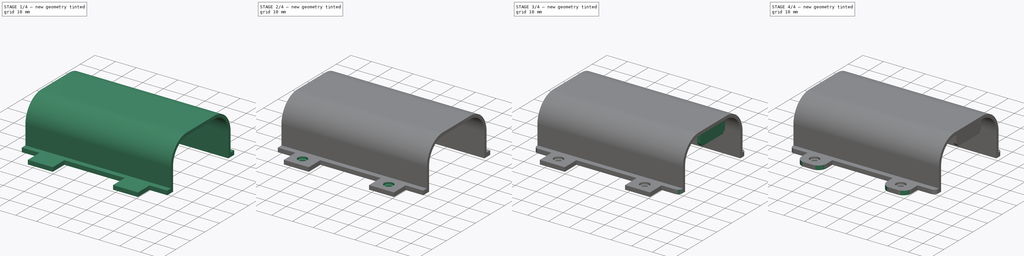
[diagram: build sequence overview — one tinted view per stage of 4, left to right]
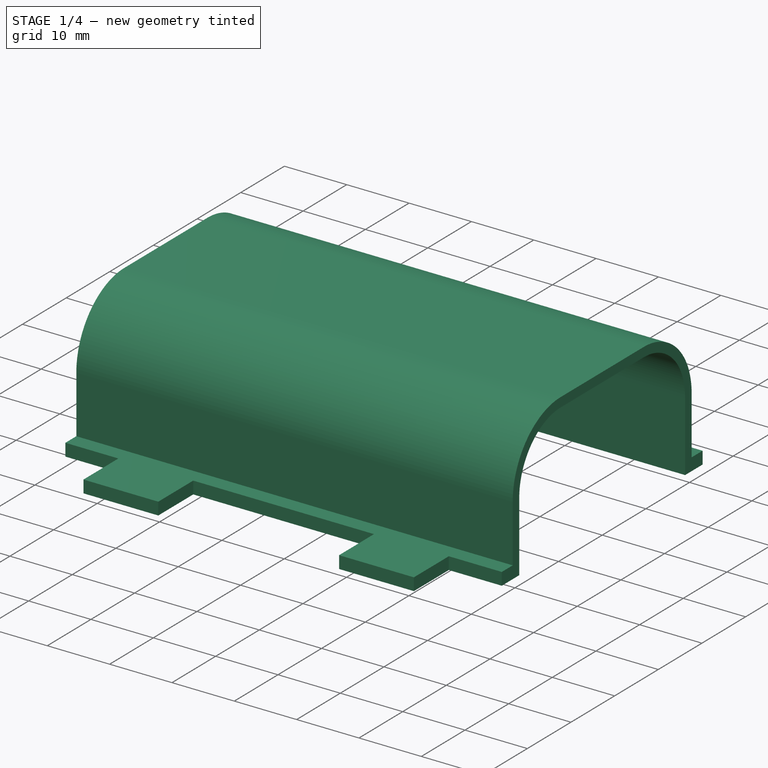
[diagram: stage 1 of 4 — iso view after this stage's code; geometry added in this stage tinted green]
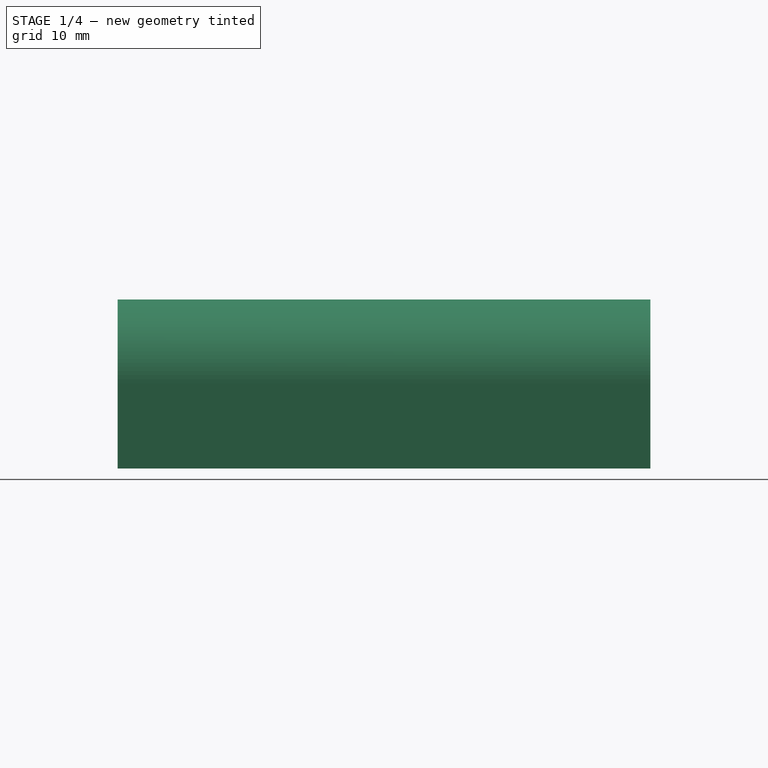
[diagram: stage 1 of 4 — front view after this stage's code; geometry added in this stage tinted green]
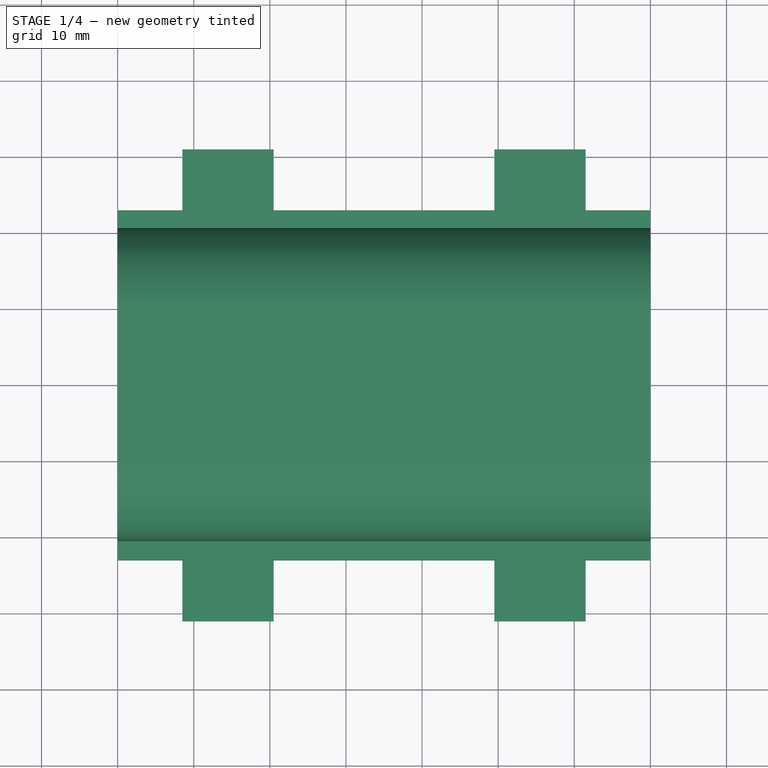
[diagram: stage 1 of 4 — top view after this stage's code; geometry added in this stage tinted green]
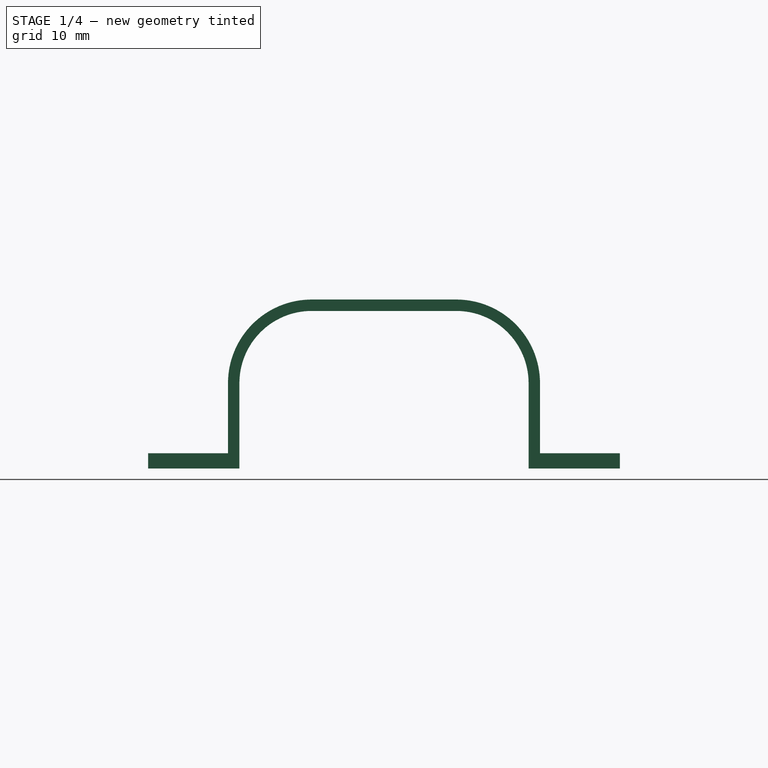
[diagram: stage 1 of 4 — right view after this stage's code; geometry added in this stage tinted green]
FCSTD DOCUMENT  (FreeCAD 0.20R29603 (Git))
Label: BatteryHolder
License: All rights reserved
LicenseURL: http://en.wikipedia.org/wiki/All_rights_reserved
objects: Sketcher::SketchObject×5, PartDesign::Pocket×3, PartDesign::Fillet×3, PartDesign::Pad×2, PartDesign::LinearPattern×1, PartDesign::Body×1
note: 23 computed .brp shape members not serialized (recipe doc carries the construction recipe); baked Part::Feature solids carry a one-line shape summary decoded from their .brp

FEATURE [Sketcher::SketchObject] Sketch
  FullyConstrained = true
  MapMode = 5
  Placement = pos=(0,0,0) rot=(0.57735,0.57735,0.57735;2.0944rad)
  Support = -> [YZ_Plane]
  sketch-geometry (16):
    g0: ArcOfCircle CenterX=9.5 CenterY=11.2 CenterZ=0 NormalX=0 NormalY=0 NormalZ=1 AngleXU=0 Radius=9.5 StartAngle=2.1e-15 EndAngle=1.5708
    g1: ArcOfCircle CenterX=-9.5 CenterY=11.2 CenterZ=0 NormalX=0 NormalY=0 NormalZ=1 AngleXU=0 Radius=9.5 StartAngle=1.5708 EndAngle=3.14159
    g2: LineSegment StartX=-9.5 StartY=20.7 StartZ=0 EndX=9.5 EndY=20.7 EndZ=0
    g3: LineSegment StartX=-9.5 StartY=22.2 StartZ=0 EndX=9.5 EndY=22.2 EndZ=0
    g4: LineSegment StartX=-19 StartY=11.2 StartZ=0 EndX=-19 EndY=0 EndZ=0
    g5: LineSegment StartX=-31 StartY=0 StartZ=0 EndX=-31 EndY=2 EndZ=0
    g6: LineSegment StartX=-31 StartY=2 StartZ=0 EndX=-20.5 EndY=2 EndZ=0
    g7: LineSegment StartX=-20.5 StartY=2 StartZ=0 EndX=-20.5 EndY=11.2 EndZ=0
    g8: LineSegment StartX=19 StartY=11.2 StartZ=0 EndX=19 EndY=0 EndZ=0
    g9: LineSegment StartX=-19 StartY=0 StartZ=0 EndX=-31 EndY=0 EndZ=0
    g10: LineSegment StartX=19 StartY=0 StartZ=0 EndX=31 EndY=0 EndZ=0
    g11: LineSegment StartX=31 StartY=0 StartZ=0 EndX=31 EndY=2 EndZ=0
    g12: LineSegment StartX=31 StartY=2 StartZ=0 EndX=20.5 EndY=2 EndZ=0
    g13: LineSegment StartX=20.5 StartY=2 StartZ=0 EndX=20.5 EndY=11.2 EndZ=0
    g14: ArcOfCircle CenterX=-9.5 CenterY=11.2 CenterZ=0 NormalX=0 NormalY=0 NormalZ=1 AngleXU=0 Radius=11 StartAngle=1.5708 EndAngle=3.14159
    g15: ArcOfCircle CenterX=9.5 CenterY=11.2 CenterZ=0 NormalX=0 NormalY=0 NormalZ=1 AngleXU=0 Radius=11 StartAngle=0 EndAngle=1.5708
  constraints (38):
    c: Equal(g0,g1)
    c: Diameter(g0) = 19
    c: Horizontal(g3)
    c: DistanceY(g-1,g1) = 11.2
    c: PointOnObject(g4,g-1)
    c: PointOnObject(g5,g-1)
    c: Vertical(g5)
    c: Coincident(g6,g5)
    c: Horizontal(g6)
    c: Coincident(g7,g6)
    c: Coincident(g9,g4)
    c: Coincident(g9,g5)
    c: Coincident(g10,g8)
    c: PointOnObject(g10,g-1)
    c: Vertical(g11)
    c: Tangent(g1,g2) = 1.5708
    c: Tangent(g0,g2) = 1.5708
    c: Symmetric(g1,g0,g-2)
    c: DistanceX(g1,g0) = 19
    c: Diameter(g15) = 22
    c: Coincident(g14,g1)
    c: Coincident(g15,g0)
    c: Tangent(g3,g14) = 1.5708
    c: Tangent(g3,g15) = 1.5708
    c: Tangent(g15,g13) = -1.5708
    c: Tangent(g7,g14) = 1.5708
    c: Tangent(g1,g4) = -1.5708
    c: Tangent(g0,g8) = 1.5708
    c: Symmetric(g4,g8,g-2)
    c: Vertical(g4)
    c: Symmetric(g6,g12,g-2)
    c: Vertical(g7)
    c: Coincident(g13,g12)
    c: Coincident(g12,g11)
    c: Coincident(g10,g11)
    c: Symmetric(g5,g11,g-2)
    c: DistanceX(g8,g10) = 12
    c: DistanceY(g10,g11) = 2
FEATURE [PartDesign::Pad] Pad
  Direction = (1,-2e-16,3e-16)
  Length = 70
  Length2 = 10
  Placement = pos=(0,0,0) rot=(0.57735,0.57735,0.57735;2.0944rad)
  Profile = -> Sketch
  ReferenceAxis = -> Sketch [N_Axis]
  Type = 0
FEATURE [Sketcher::SketchObject] Sketch001
  ExternalGeometry = -> [Pad]
  FullyConstrained = true
  MapMode = 5
  Placement = pos=(-6e-16,9e-16,2) rot=(0,0,-1;1.5708rad)
  Support = -> [Pad]
  sketch-geometry (24):
    g0: LineSegment StartX=23 StartY=73 StartZ=0 EndX=23 EndY=61.5 EndZ=0
    g1: LineSegment StartX=35 StartY=61.5 StartZ=0 EndX=35 EndY=49.5 EndZ=0
    g2: LineSegment StartX=35 StartY=49.5 StartZ=0 EndX=23 EndY=49.5 EndZ=0
    g3: LineSegment StartX=23 StartY=49.5 StartZ=0 EndX=23 EndY=20.5 EndZ=0
    g4: LineSegment StartX=23 StartY=20.5 StartZ=0 EndX=35 EndY=20.5 EndZ=0
    g5: LineSegment StartX=35 StartY=20.5 StartZ=0 EndX=35 EndY=8.5 EndZ=0
    g6: LineSegment StartX=35 StartY=8.5 StartZ=0 EndX=23 EndY=8.5 EndZ=0
    g7: LineSegment StartX=23 StartY=8.5 StartZ=0 EndX=23 EndY=-3 EndZ=0
    g8: LineSegment StartX=23 StartY=-3 StartZ=0 EndX=46 EndY=-3 EndZ=0
    g9: LineSegment StartX=46 StartY=-3 StartZ=0 EndX=46 EndY=73 EndZ=0
    g10: LineSegment StartX=46 StartY=73 StartZ=0 EndX=23 EndY=73 EndZ=0
    g11: LineSegment StartX=23 StartY=61.5 StartZ=0 EndX=35 EndY=61.5 EndZ=0
    g12: LineSegment StartX=-46 StartY=73 StartZ=0 EndX=-23 EndY=73 EndZ=0
    g13: LineSegment StartX=-23 StartY=73 StartZ=0 EndX=-23 EndY=61.5 EndZ=0
    g14: LineSegment StartX=-35 StartY=61.5 StartZ=0 EndX=-35 EndY=49.5 EndZ=0
    g15: LineSegment StartX=-23 StartY=61.5 StartZ=0 EndX=-35 EndY=61.5 EndZ=0
    g16: LineSegment StartX=-23 StartY=49.5 StartZ=0 EndX=-23 EndY=20.5 EndZ=0
    g17: LineSegment StartX=-23 StartY=20.5 StartZ=0 EndX=-35 EndY=20.5 EndZ=0
    g18: LineSegment StartX=-35 StartY=20.5 StartZ=0 EndX=-35 EndY=8.5 EndZ=0
    g19: LineSegment StartX=-35 StartY=8.5 StartZ=0 EndX=-23 EndY=8.5 EndZ=0
    g20: LineSegment StartX=-23 StartY=8.5 StartZ=0 EndX=-23 EndY=-3 EndZ=0
    g21: LineSegment StartX=-23 StartY=-3 StartZ=0 EndX=-46 EndY=-3 EndZ=0
    g22: LineSegment StartX=-46 StartY=-3 StartZ=0 EndX=-46 EndY=73 EndZ=0
    g23: LineSegment StartX=-35 StartY=49.5 StartZ=0 EndX=-23 EndY=49.5 EndZ=0
  constraints (72):
    c: Vertical(g0)
    c: Vertical(g1)
    c: Coincident(g1,g2)
    c: Horizontal(g2)
    c: Coincident(g2,g3)
    c: Vertical(g3)
    c: Coincident(g3,g4)
    c: Horizontal(g4)
    c: Coincident(g4,g5)
    c: Vertical(g5)
    c: Coincident(g5,g6)
    c: Horizontal(g6)
    c: Coincident(g6,g7)
    c: Vertical(g7)
    c: Coincident(g7,g8)
    c: Horizontal(g8)
    c: Coincident(g8,g9)
    c: Vertical(g9)
    c: Coincident(g9,g10)
    c: Coincident(g10,g0)
    c: Horizontal(g10)
    c: DistanceX(g-1,g7) = 23
    c: Vertical(g6,g3)
    c: Vertical(g3,g0)
    c: DistanceY(g5,g4) = 12
    c: Equal(g5,g1)
    c: Vertical(g1,g5)
    c: DistanceX(g2,g1) = 12
    c: DistanceX(g0,g9) = 23
    c: DistanceY(g8,g9) = 76
    c: Equal(g7,g0)
    c: DistanceY(g3,g3) = 29
    c: DistanceY(g7,g-1) = 3
    c: Coincident(g11,g0)
    c: Coincident(g11,g1)
    c: Horizontal(g11)
    c: Vertical(g13)
    c: Vertical(g14)
    c: Vertical(g16)
    c: Coincident(g16,g17)
    c: Horizontal(g17)
    c: Coincident(g17,g18)
    c: Vertical(g18)
    c: Coincident(g18,g19)
    c: Horizontal(g19)
    c: Coincident(g19,g20)
    c: Vertical(g20)
    c: Coincident(g20,g21)
    c: Horizontal(g21)
    c: Coincident(g21,g22)
    c: Vertical(g22)
    c: Coincident(g22,g12)
    c: Coincident(g12,g13)
    c: Horizontal(g12)
    c: Equal(g18,g14)
    c: Equal(g20,g13)
    c: Coincident(g15,g13)
    c: Coincident(g15,g14)
    c: Horizontal(g15)
    c: Coincident(g23,g14)
    c: Coincident(g23,g16)
    c: Horizontal(g23)
    c: Equal(g10,g12)
    c: Equal(g22,g9)
    c: Equal(g21,g8)
    c: Equal(g20,g7)
    c: Equal(g19,g6)
    c: Equal(g16,g3)
    c: Equal(g23,g2)
    c: Vertical(g13,g16)
    c: DistanceX(g20,g-1) = 23
    c: Horizontal(g19,g6)
FEATURE [PartDesign::Pocket] Pocket
  BaseFeature = -> Pad
  Direction = (4e-16,-6e-16,-1)
  Length = 5
  Length2 = 5
  Placement = pos=(0,0,0) rot=(0.57735,0.57735,0.57735;2.0944rad)
  Profile = -> Sketch001
  ReferenceAxis = -> Sketch001 [N_Axis]
  Type = 1
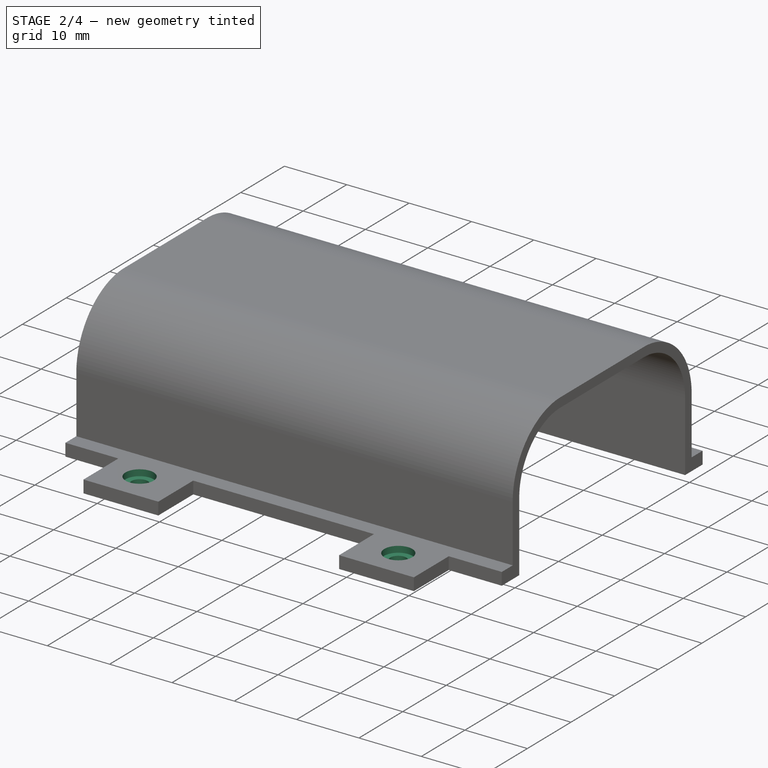
[diagram: stage 2 of 4 — iso view after this stage's code; geometry added in this stage tinted green]
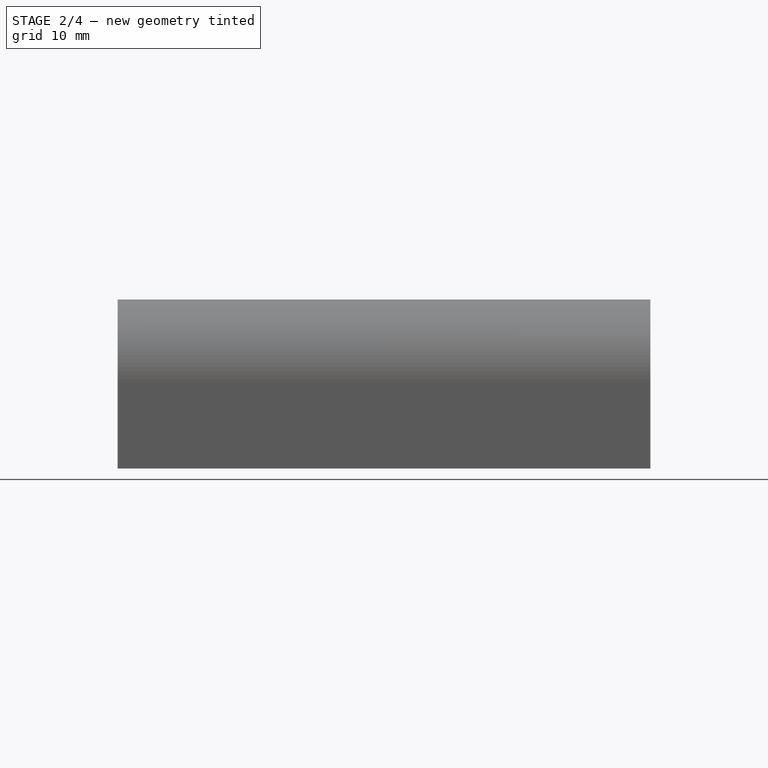
[diagram: stage 2 of 4 — front view after this stage's code; geometry added in this stage tinted green]
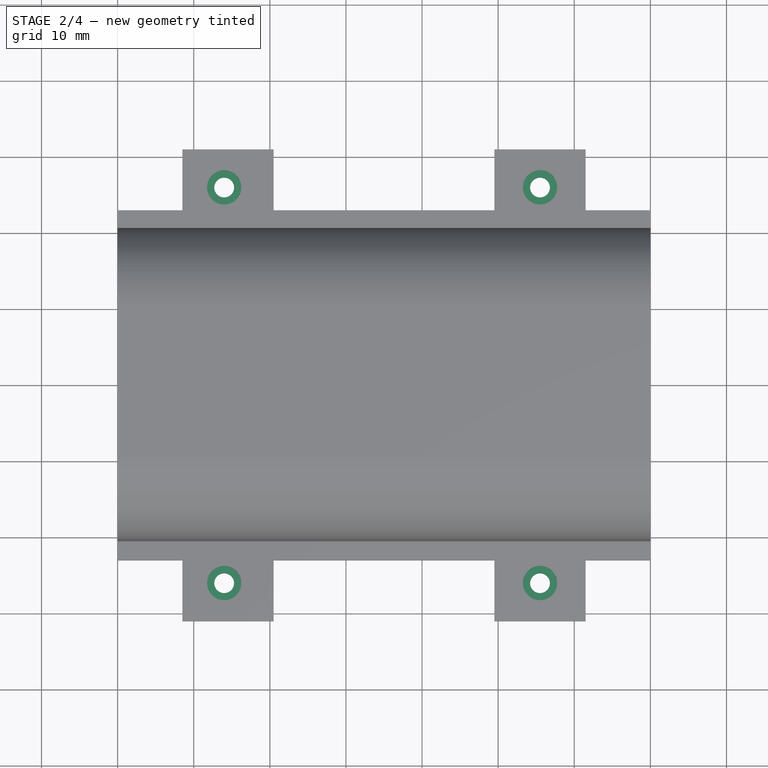
[diagram: stage 2 of 4 — top view after this stage's code; geometry added in this stage tinted green]
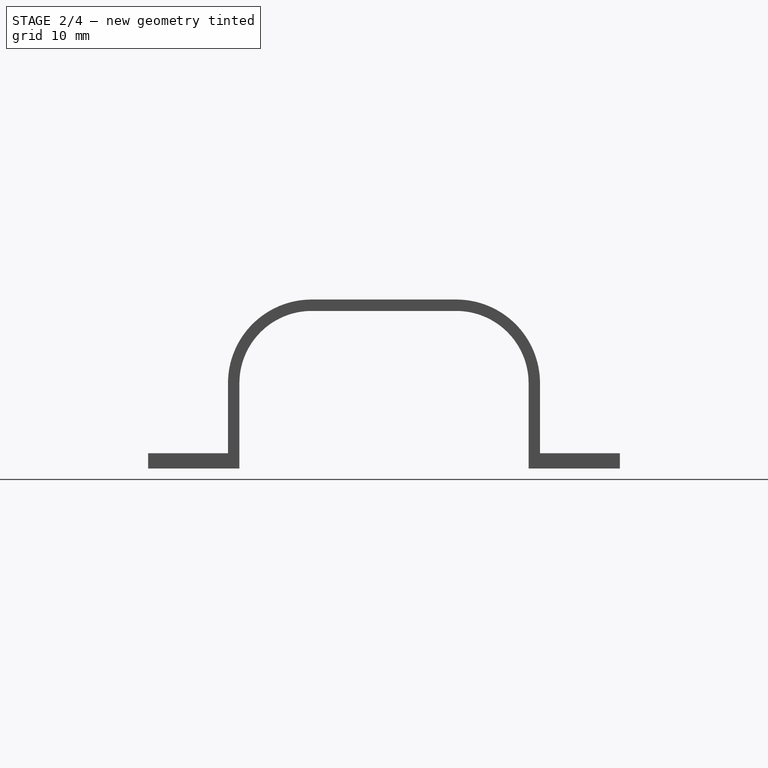
[diagram: stage 2 of 4 — right view after this stage's code; geometry added in this stage tinted green]
FEATURE [Sketcher::SketchObject] Sketch002
  FullyConstrained = true
  MapMode = 5
  Placement = pos=(-6e-16,9e-16,2) rot=(0,0,-1;1.5708rad)
  Support = -> [Pocket]
  sketch-geometry (4):
    g0: Circle CenterX=26 CenterY=14 CenterZ=0 NormalX=0 NormalY=0 NormalZ=1 AngleXU=0 Radius=1.3
    g1: Circle CenterX=-26 CenterY=14 CenterZ=0 NormalX=0 NormalY=0 NormalZ=1 AngleXU=0 Radius=1.3
    g2: Circle CenterX=26 CenterY=55.5 CenterZ=0 NormalX=0 NormalY=0 NormalZ=1 AngleXU=0 Radius=1.3
    g3: Circle CenterX=-26 CenterY=55.5 CenterZ=0 NormalX=0 NormalY=0 NormalZ=1 AngleXU=0 Radius=1.3
  constraints (10):
    c: DistanceX(g-1,g0) = 26
    c: Vertical(g2,g0)
    c: Symmetric(g0,g1,g-2)
    c: Symmetric(g2,g3,g-2)
    c: DistanceY(g-1,g0) = 14
    c: DistanceY(g0,g2) = 41.5
    c: Equal(g2,g0)
    c: Equal(g0,g3)
    c: Equal(g3,g1)
    c: Diameter(g2) = 2.6
FEATURE [PartDesign::Pocket] Pocket001
  BaseFeature = -> Pocket
  Direction = (7e-16,-7e-16,-1)
  Length = 5
  Length2 = 5
  Placement = pos=(0,0,0) rot=(0.57735,0.57735,0.57735;2.0944rad)
  Profile = -> Sketch002
  ReferenceAxis = -> Sketch002 [N_Axis]
  Type = 1
FEATURE [Sketcher::SketchObject] Sketch003
  ExternalGeometry = -> [Pocket001]
  FullyConstrained = true
  MapMode = 5
  Placement = pos=(-6e-16,9e-16,2) rot=(0,0,-1;1.5708rad)
  Support = -> [Pocket001]
  sketch-geometry (4):
    g0: Circle CenterX=26 CenterY=55.5 CenterZ=0 NormalX=0 NormalY=0 NormalZ=1 AngleXU=0 Radius=2.25
    g1: Circle CenterX=26 CenterY=14 CenterZ=0 NormalX=0 NormalY=0 NormalZ=1 AngleXU=0 Radius=2.25
    g2: Circle CenterX=-26 CenterY=55.5 CenterZ=0 NormalX=0 NormalY=0 NormalZ=1 AngleXU=0 Radius=2.25
    g3: Circle CenterX=-26 CenterY=14 CenterZ=0 NormalX=0 NormalY=0 NormalZ=1 AngleXU=0 Radius=2.25
  constraints (8):
    c: Coincident(g0,g-3)
    c: Coincident(g1,g-4)
    c: Coincident(g2,g-5)
    c: Coincident(g3,g-6)
    c: Equal(g0,g1)
    c: Equal(g1,g3)
    c: Equal(g3,g2)
    c: Diameter(g0) = 4.5
FEATURE [PartDesign::Pocket] Pocket002
  BaseFeature = -> Pocket001
  Direction = (1.1e-15,-8e-16,-1)
  Length = 1
  Length2 = 5
  Placement = pos=(0,0,0) rot=(0.57735,0.57735,0.57735;2.0944rad)
  Profile = -> Sketch003
  ReferenceAxis = -> Sketch003 [N_Axis]
  Type = 0
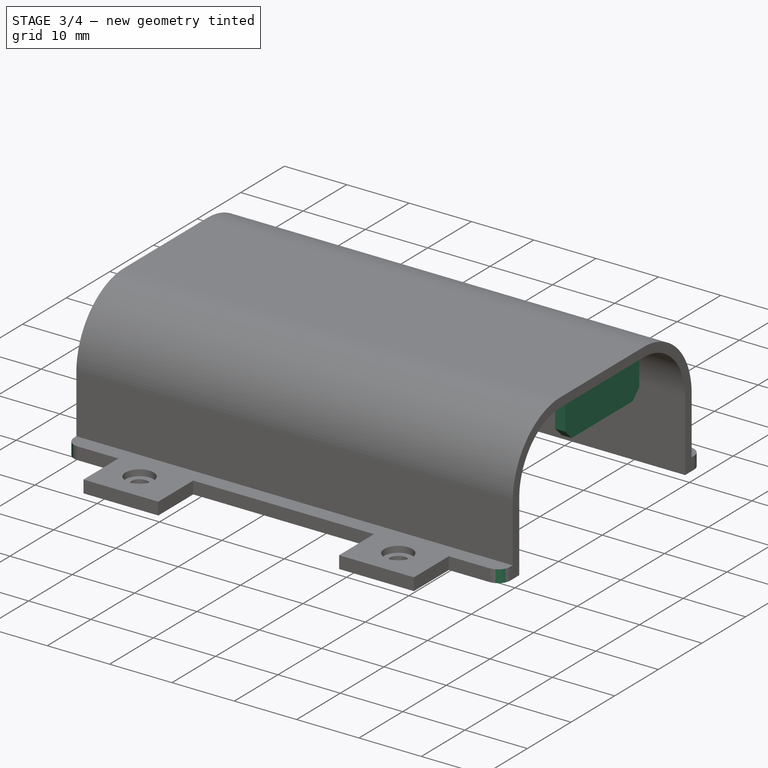
[diagram: stage 3 of 4 — iso view after this stage's code; geometry added in this stage tinted green]
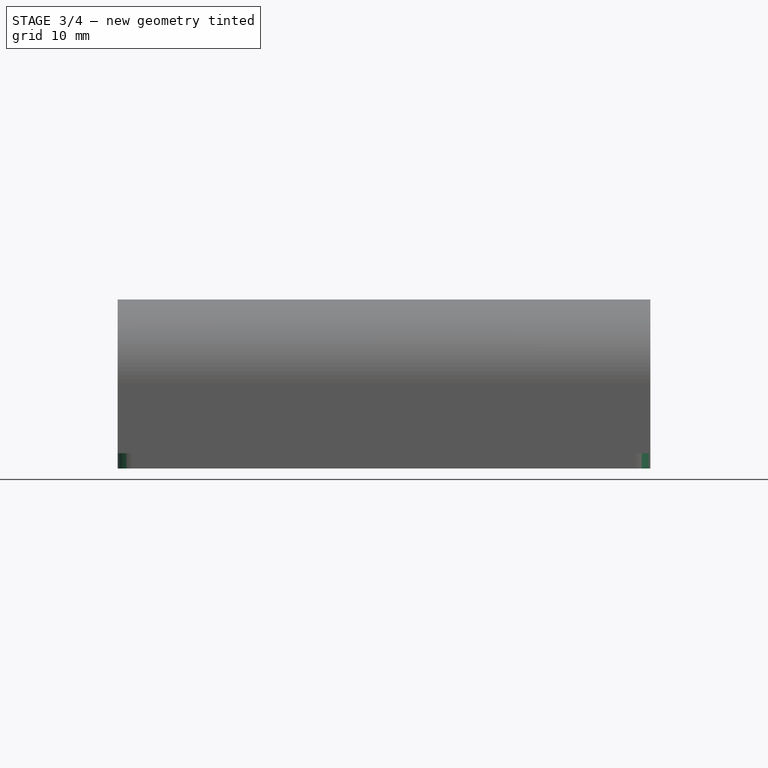
[diagram: stage 3 of 4 — front view after this stage's code; geometry added in this stage tinted green]
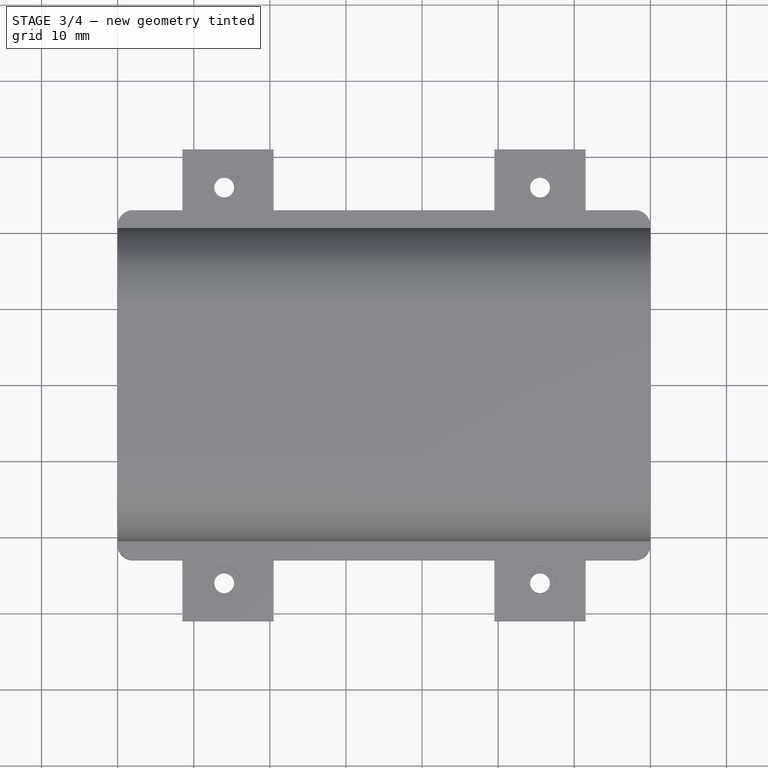
[diagram: stage 3 of 4 — top view after this stage's code; geometry added in this stage tinted green]
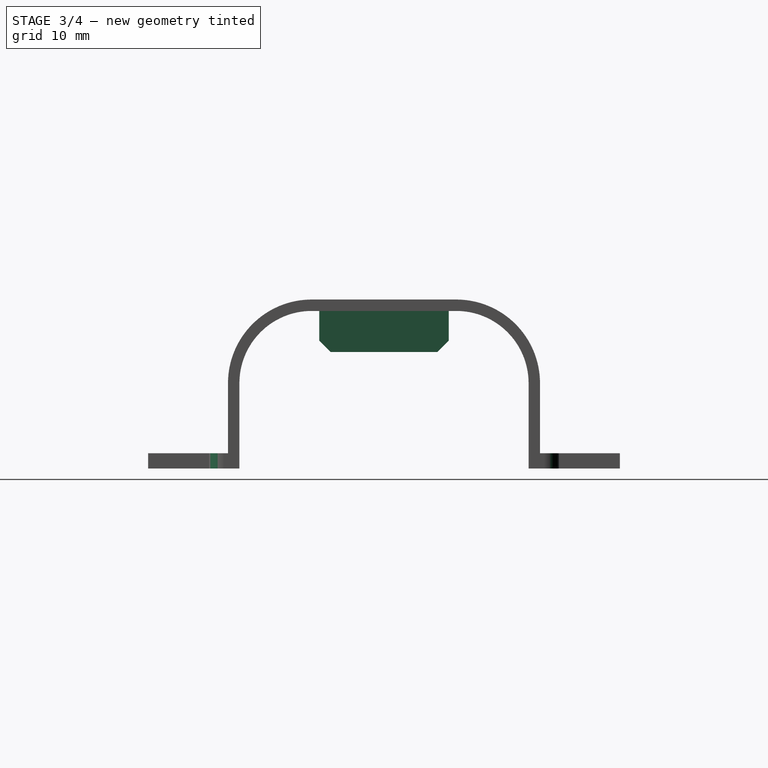
[diagram: stage 3 of 4 — right view after this stage's code; geometry added in this stage tinted green]
FEATURE [Sketcher::SketchObject] Sketch004
  ExternalGeometry = -> [Pocket002]
  FullyConstrained = true
  MapMode = 5
  Placement = pos=(0,0,0) rot=(0.57735,0.57735,0.57735;2.0944rad)
  Support = -> [YZ_Plane]
  sketch-geometry (6):
    g0: LineSegment StartX=-8.5 StartY=21.3 StartZ=0 EndX=8.5 EndY=21.3 EndZ=0
    g1: LineSegment StartX=-8.5 StartY=21.3 StartZ=0 EndX=-8.5 EndY=16.8 EndZ=0
    g2: LineSegment StartX=-8.5 StartY=16.8 StartZ=0 EndX=-7 EndY=15.3 EndZ=0
    g3: LineSegment StartX=-7 StartY=15.3 StartZ=0 EndX=7 EndY=15.3 EndZ=0
    g4: LineSegment StartX=7 StartY=15.3 StartZ=0 EndX=8.5 EndY=16.8 EndZ=0
    g5: LineSegment StartX=8.5 StartY=16.8 StartZ=0 EndX=8.5 EndY=21.3 EndZ=0
  constraints (16):
    c: Coincident(g1,g0)
    c: Vertical(g1)
    c: Coincident(g5,g0)
    c: Coincident(g4,g5)
    c: Vertical(g5)
    c: Symmetric(g0,g0,g-2)
    c: Coincident(g1,g2)
    c: Coincident(g2,g3)
    c: Coincident(g4,g3)
    c: DistanceY(g-3,g0) = 0.6
    c: DistanceX(g-3,g0) = 1
    c: Symmetric(g2,g3,g-2)
    c: DistanceY(g1,g0) = 4.5
    c: Equal(g5,g1)
    c: DistanceY(g3,g0) = 6
    c: DistanceX(g2,g3) = 14
FEATURE [PartDesign::Pad] Pad001
  BaseFeature = -> Pocket002
  Direction = (1,-2e-16,3e-16)
  Length = 1.6
  Length2 = 10
  Placement = pos=(0,0,0) rot=(0.57735,0.57735,0.57735;2.0944rad)
  Profile = -> Sketch004
  ReferenceAxis = -> Sketch004 [N_Axis]
  Type = 0
FEATURE [PartDesign::LinearPattern] LinearPattern
  BaseFeature = -> Pad001
  Direction = -> X_Axis
  Length = 68.4
  Occurrences = 2
  Originals = -> [Pad001]
  Placement = pos=(0,0,0) rot=(0.57735,0.57735,0.57735;2.0944rad)
FEATURE [PartDesign::Fillet] Fillet
  Base = -> LinearPattern [Edge49,Edge41,Edge25,Edge33]
  BaseFeature = -> LinearPattern
  Placement = pos=(0,0,0) rot=(0.57735,0.57735,0.57735;2.0944rad)
  Radius = 2
  SupportTransform = false
  UseAllEdges = false
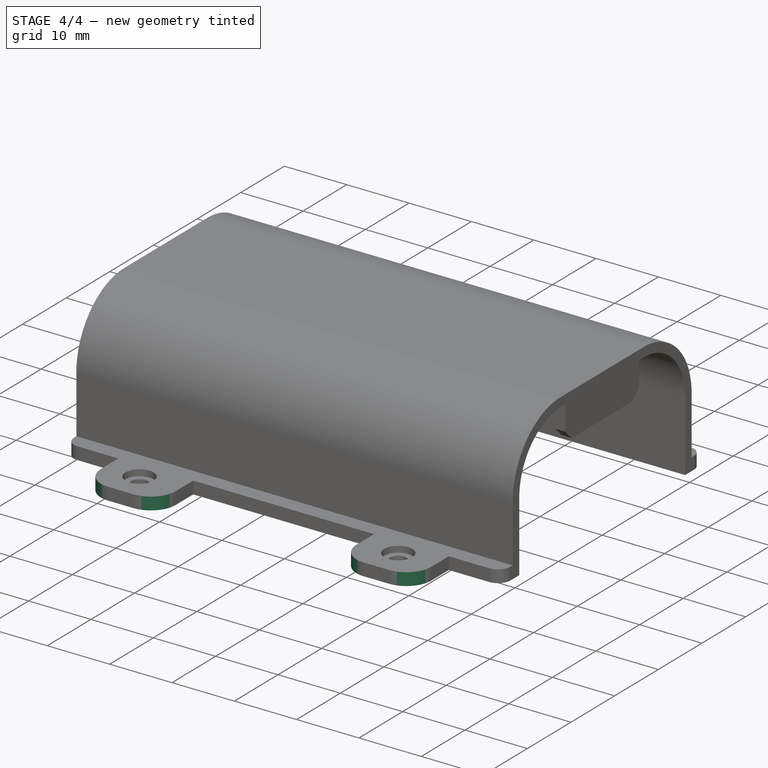
[diagram: stage 4 of 4 — iso view after this stage's code; geometry added in this stage tinted green]
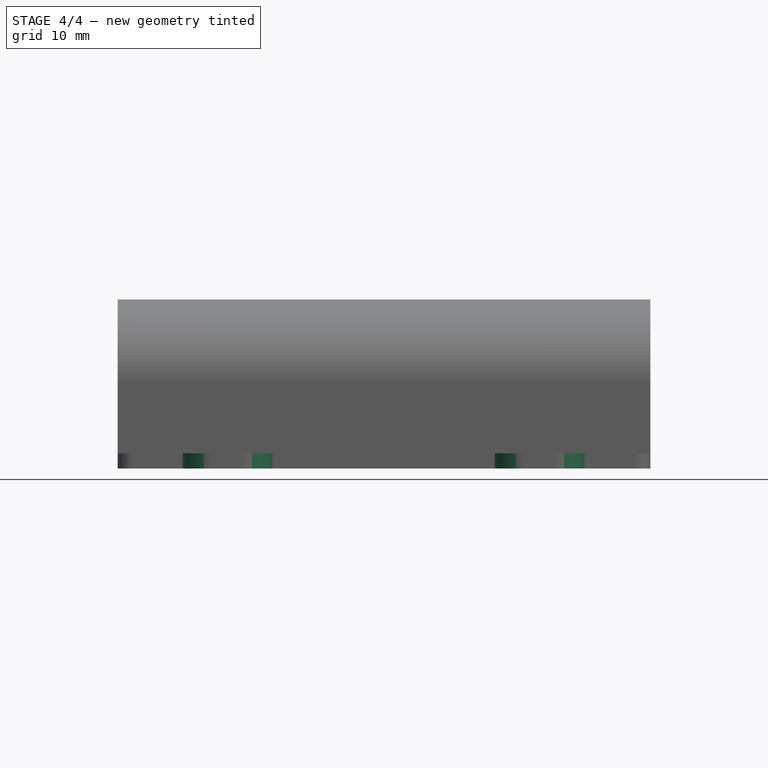
[diagram: stage 4 of 4 — front view after this stage's code; geometry added in this stage tinted green]
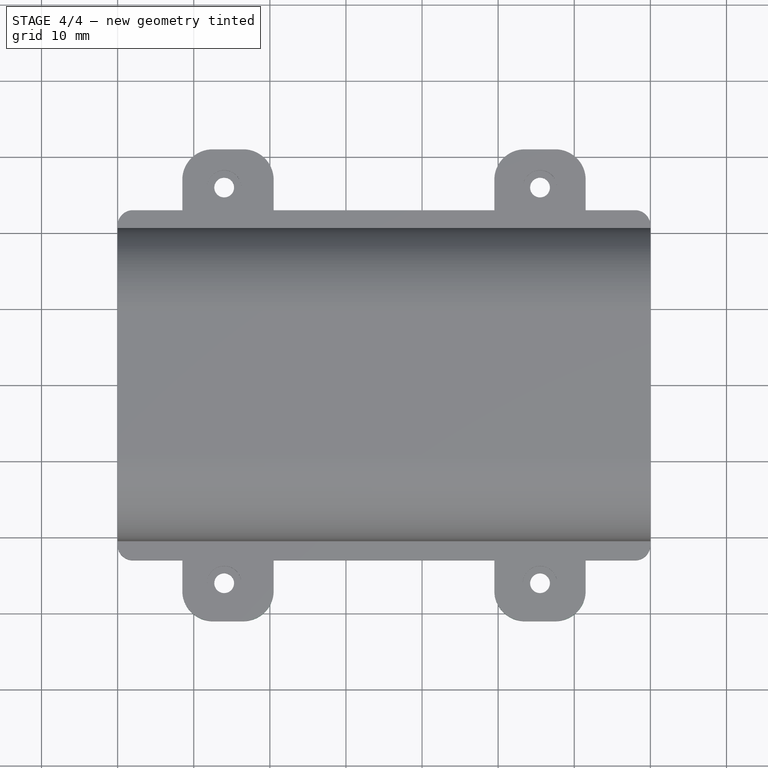
[diagram: stage 4 of 4 — top view after this stage's code; geometry added in this stage tinted green]
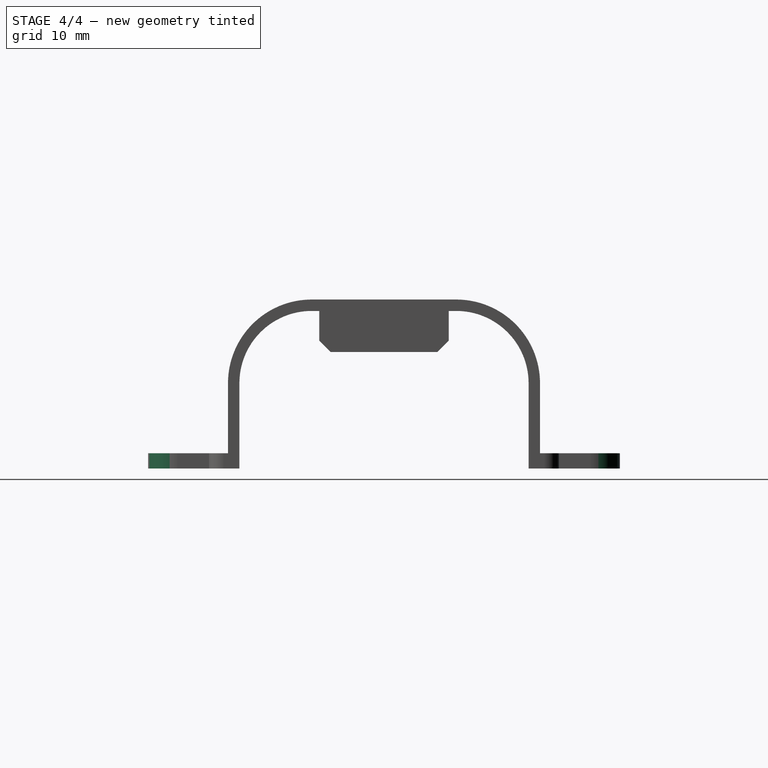
[diagram: stage 4 of 4 — right view after this stage's code; geometry added in this stage tinted green]
FEATURE [PartDesign::Fillet] Fillet001
  Base = -> Fillet [Edge115,Edge117,Edge122,Edge120]
  BaseFeature = -> Fillet
  Placement = pos=(0,0,0) rot=(0.57735,0.57735,0.57735;2.0944rad)
  Radius = 4
  SupportTransform = false
  UseAllEdges = false
FEATURE [PartDesign::Fillet] Fillet002
  Base = -> Fillet001 [Edge173,Edge171,Edge168,Edge167]
  BaseFeature = -> Fillet001
  Placement = pos=(0,0,0) rot=(0.57735,0.57735,0.57735;2.0944rad)
  Radius = 4
  SupportTransform = false
  UseAllEdges = false
FEATURE [PartDesign::Body] Body
  Group = -> [Sketch,Pad,Sketch001,Pocket,Sketch002,Pocket001,Sketch003,Pocket002,Sketch004,Pad001,LinearPattern,Fillet,Fillet001,Fillet002]
  Origin = -> Origin
  Tip = -> Fillet002
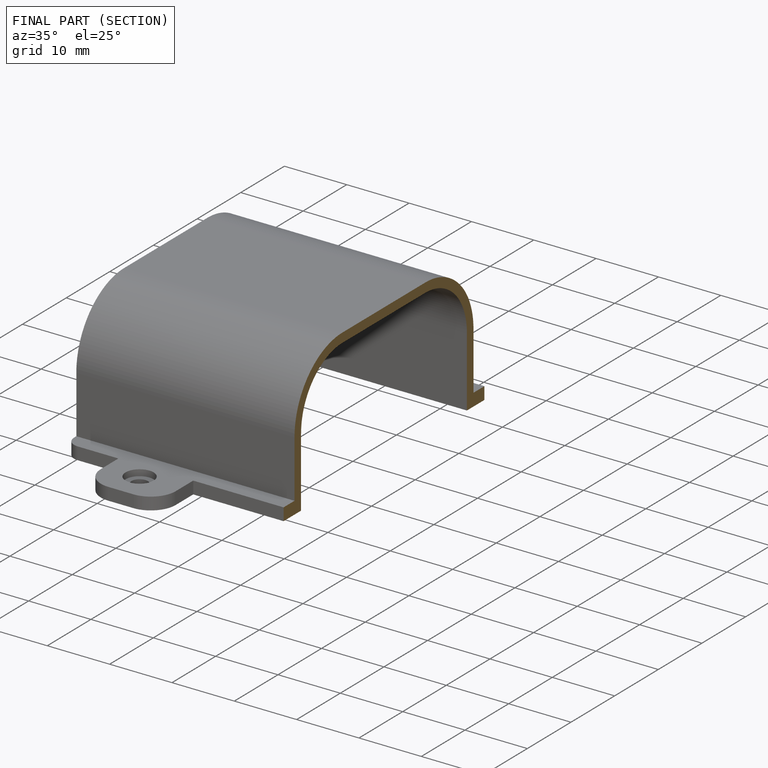
[diagram: finished part — half-section view (interior)]
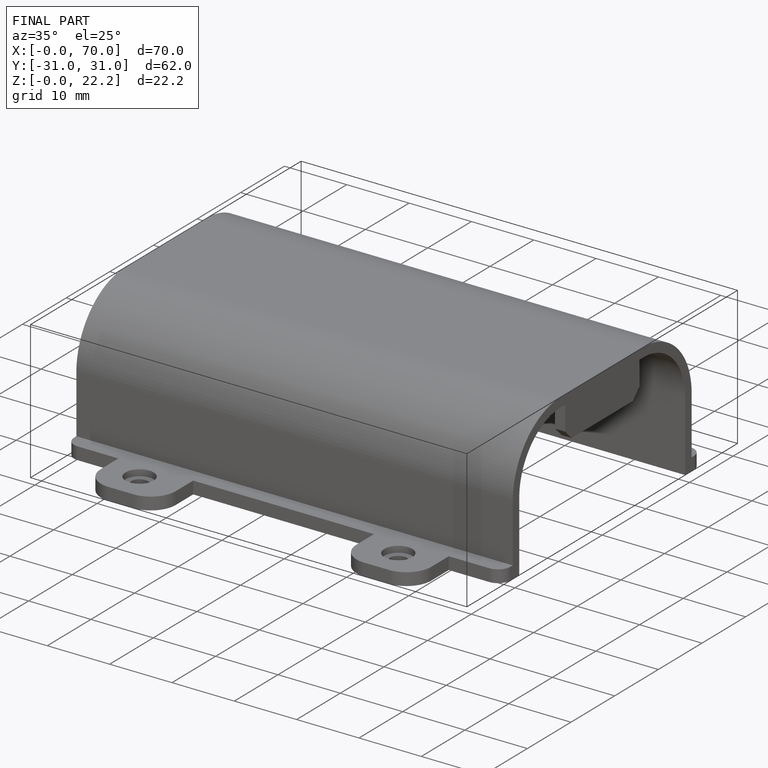
[diagram: finished part — iso view with bounding-box wireframe]
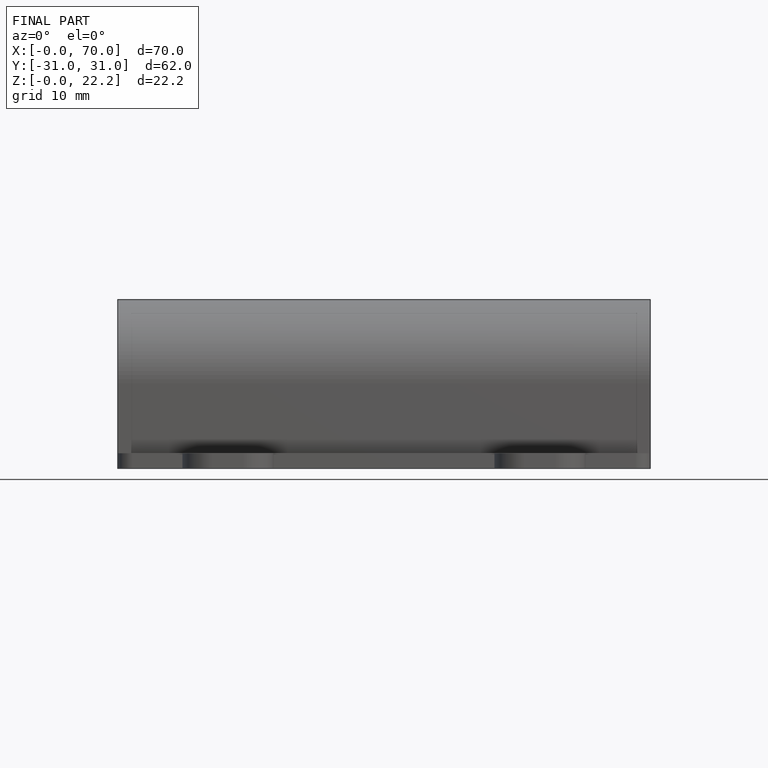
[diagram: finished part — front view with bounding-box wireframe]
